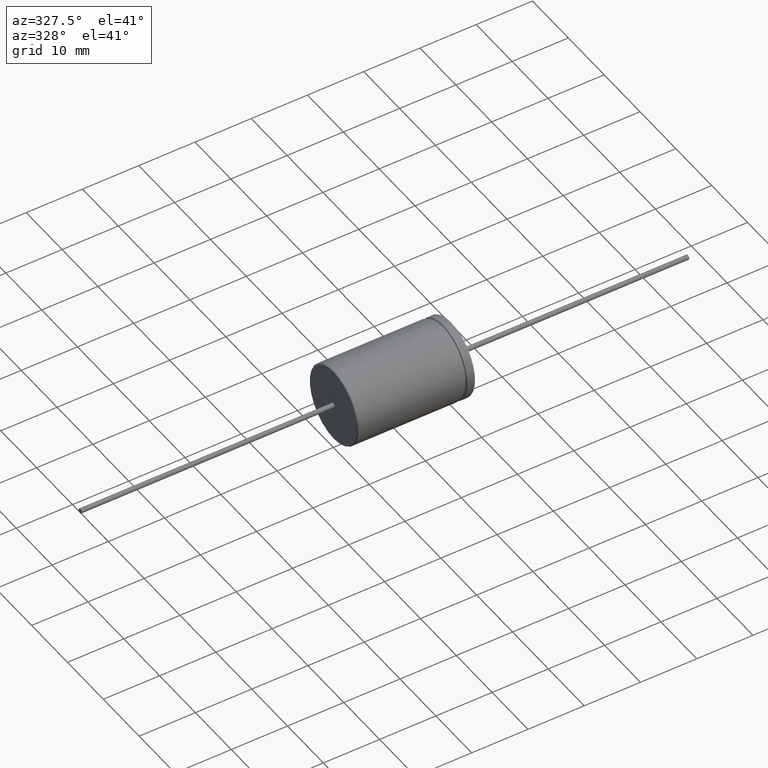
[diagram: clean part render]
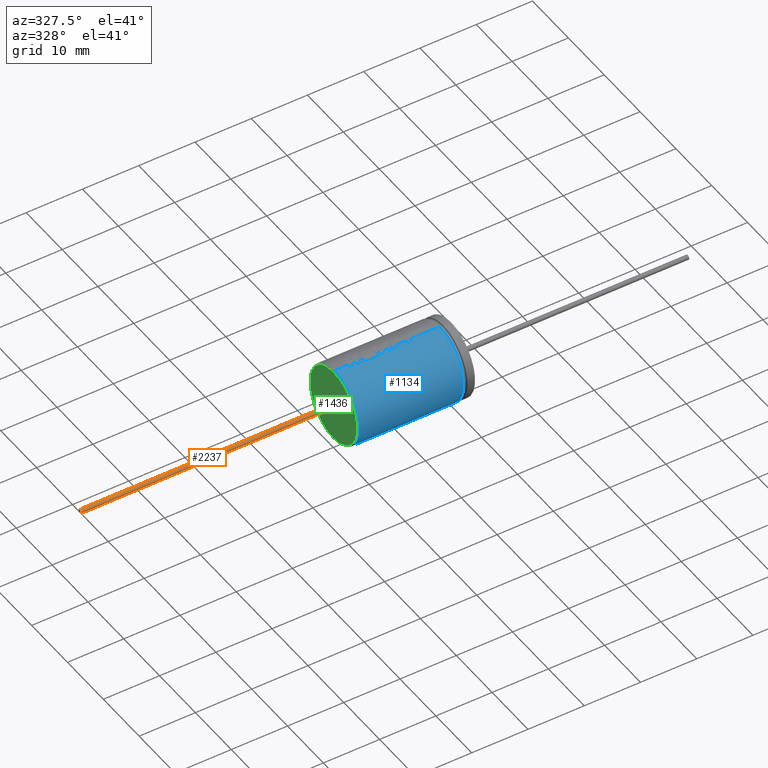
[diagram: same view with three faces highlighted in distinct colors, each labeled with its STEP entity id]
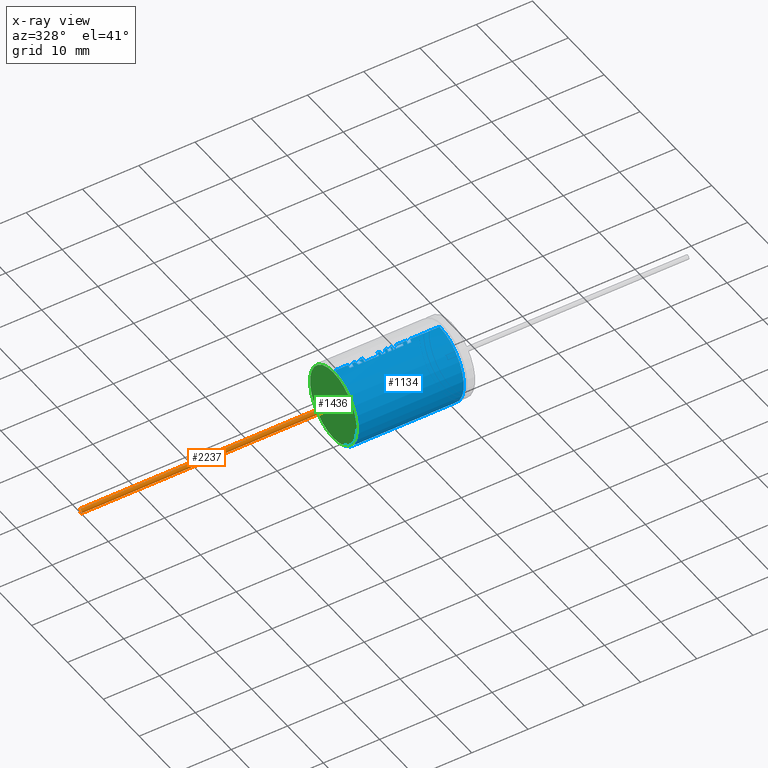
[diagram: x-ray of the same camera — body ghosted, the three highlighted faces saturated]
A machine part, auxiliary view with three faces highlighted in distinct colors.
The next image is the same camera in x-ray (body ghosted, the three faces saturated) — at least one of them is partly hidden behind the body in this view.
Their STEP definitions:

[orange] entity #2237 — the highlighted cylindrical surface (edge-blend (fillet) strip) has radius 0.415 mm, axis along (1, -0, -0).
#11 = EDGE_CURVE ( 'NONE', #3561, #2084, #1582, .T. ) ;
#167 = EDGE_CURVE ( 'NONE', #859, #1754, #1039, .T. ) ;
#261 = FACE_OUTER_BOUND ( 'NONE', #4697, .T. ) ;
#394 = VECTOR ( 'NONE', #4275, 1000.000000000000000 ) ;
#435 = CARTESIAN_POINT ( 'NONE',  ( -45.00000000000000000, 5.082284216461515600E-017, 0.4150000000000000400 ) ) ;
#603 = CARTESIAN_POINT ( 'NONE',  ( 0.0000000000000000000, 0.0000000000000000000, 0.0000000000000000000 ) ) ;
#850 = CARTESIAN_POINT ( 'NONE',  ( 0.0000000000000000000, 0.0000000000000000000, -0.4150000000000000400 ) ) ;
#859 = VERTEX_POINT ( 'NONE', #850 ) ;
#1039 = CIRCLE ( 'NONE', #4531, 0.4150000000000000400 ) ;
#1076 = CARTESIAN_POINT ( 'NONE',  ( -45.00000000000000000, 0.0000000000000000000, 0.0000000000000000000 ) ) ;
#1093 = CARTESIAN_POINT ( 'NONE',  ( -45.00000000000000000, 0.0000000000000000000, -0.4150000000000000400 ) ) ;
#1381 = ORIENTED_EDGE ( 'NONE', *, *, #11, .F. ) ;
#1582 = CIRCLE ( 'NONE', #2242, 0.4150000000000000400 ) ;
#1754 = VERTEX_POINT ( 'NONE', #2627 ) ;
#1758 = AXIS2_PLACEMENT_3D ( 'NONE', #3017, #3082, #2358 ) ;
#1988 = DIRECTION ( 'NONE',  ( 1.000000000000000000, -0.0000000000000000000, -0.0000000000000000000 ) ) ;
#2084 = VERTEX_POINT ( 'NONE', #435 ) ;
#2237 = ADVANCED_FACE ( 'NONE', ( #261 ), #3027, .T. ) ;
#2242 = AXIS2_PLACEMENT_3D ( 'NONE', #1076, #3641, #4017 ) ;
#2358 = DIRECTION ( 'NONE',  ( 0.0000000000000000000, 0.0000000000000000000, -1.000000000000000000 ) ) ;
#2627 = CARTESIAN_POINT ( 'NONE',  ( 0.0000000000000000000, 5.082284216461515600E-017, 0.4150000000000000400 ) ) ;
#2647 = ORIENTED_EDGE ( 'NONE', *, *, #2972, .T. ) ;
#2776 = DIRECTION ( 'NONE',  ( -1.000000000000000000, -0.0000000000000000000, -0.0000000000000000000 ) ) ;
#2814 = LINE ( 'NONE', #3393, #2920 ) ;
#2920 = VECTOR ( 'NONE', #1988, 1000.000000000000000 ) ;
#2972 = EDGE_CURVE ( 'NONE', #3561, #859, #2814, .T. ) ;
#3017 = CARTESIAN_POINT ( 'NONE',  ( -45.00000000000000000, 0.0000000000000000000, 0.0000000000000000000 ) ) ;
#3027 = CYLINDRICAL_SURFACE ( 'NONE', #1758, 0.4150000000000000400 ) ;
#3042 = EDGE_CURVE ( 'NONE', #2084, #1754, #3190, .T. ) ;
#3082 = DIRECTION ( 'NONE',  ( 1.000000000000000000, -0.0000000000000000000, -0.0000000000000000000 ) ) ;
#3190 = LINE ( 'NONE', #4290, #394 ) ;
#3393 = CARTESIAN_POINT ( 'NONE',  ( -45.00000000000000000, 0.0000000000000000000, -0.4150000000000000400 ) ) ;
#3561 = VERTEX_POINT ( 'NONE', #1093 ) ;
#3641 = DIRECTION ( 'NONE',  ( -1.000000000000000000, 0.0000000000000000000, 0.0000000000000000000 ) ) ;
#3716 = ORIENTED_EDGE ( 'NONE', *, *, #167, .T. ) ;
#3912 = DIRECTION ( 'NONE',  ( 0.0000000000000000000, 0.0000000000000000000, -1.000000000000000000 ) ) ;
#4017 = DIRECTION ( 'NONE',  ( 0.0000000000000000000, 0.0000000000000000000, 1.000000000000000000 ) ) ;
#4275 = DIRECTION ( 'NONE',  ( 1.000000000000000000, -0.0000000000000000000, -0.0000000000000000000 ) ) ;
#4290 = CARTESIAN_POINT ( 'NONE',  ( -45.00000000000000000, 5.082284216461515600E-017, 0.4150000000000000400 ) ) ;
#4531 = AXIS2_PLACEMENT_3D ( 'NONE', #603, #2776, #3912 ) ;
#4697 = EDGE_LOOP ( 'NONE', ( #4755, #1381, #2647, #3716 ) ) ;
#4755 = ORIENTED_EDGE ( 'NONE', *, *, #3042, .F. ) ;

[blue] entity #1134 — the highlighted cylindrical surface (partial cylindrical patch) has radius 6.75 mm, axis along (-1, -0, -0).
#17 = CARTESIAN_POINT ( 'NONE',  ( 3.857429012925699800, -0.2303407911832766100, 6.749974318427220500 ) ) ;
#20 = LINE ( 'NONE', #3083, #1112 ) ;
#49 = VERTEX_POINT ( 'NONE', #3867 ) ;
#71 = CARTESIAN_POINT ( 'NONE',  ( 0.2500000000000002200, 8.266365894244632400E-016, -6.750000000000000000 ) ) ;
#121 = ORIENTED_EDGE ( 'NONE', *, *, #2374, .F. ) ;
#131 = ORIENTED_EDGE ( 'NONE', *, *, #3179, .T. ) ;
#144 = CARTESIAN_POINT ( 'NONE',  ( 9.517690659498075700, -2.503383600265947000E-007, 6.749938489587909100 ) ) ;
#162 = ORIENTED_EDGE ( 'NONE', *, *, #3829, .F. ) ;
#177 = CARTESIAN_POINT ( 'NONE',  ( 10.00037511690322100, -0.4606233264338413500, 6.738205661582910000 ) ) ;
#192 = EDGE_CURVE ( 'NONE', #3750, #4176, #812, .T. ) ;
#217 = VERTEX_POINT ( 'NONE', #642 ) ;
#225 = CARTESIAN_POINT ( 'NONE',  ( 7.721455058457464400, -0.4606431409906652800, 6.738203625940745000 ) ) ;
#227 = B_SPLINE_CURVE_WITH_KNOTS ( 'NONE', 3,
 ( #364, #317, #691, #4387 ),
 .UNSPECIFIED., .F., .F.,
 ( 4, 4 ),
 ( 0.6460871771298075700, 1.000000000000000000 ),
 .UNSPECIFIED. ) ;
#243 = ORIENTED_EDGE ( 'NONE', *, *, #2757, .F. ) ;
#309 = EDGE_CURVE ( 'NONE', #1946, #328, #2267, .T. ) ;
#317 = CARTESIAN_POINT ( 'NONE',  ( 12.89091360785602800, -0.2303217793808541000, 6.749935600032433300 ) ) ;
#328 = VERTEX_POINT ( 'NONE', #2505 ) ;
#346 = CARTESIAN_POINT ( 'NONE',  ( 3.138411801012513700, -0.6898282814599188100, 6.714658363766399200 ) ) ;
#358 = CARTESIAN_POINT ( 'NONE',  ( 21.00000000000000000, 0.0000000000000000000, 6.750000000000000000 ) ) ;
#362 = CARTESIAN_POINT ( 'NONE',  ( 4.587624388632676200, -0.2303408246247303500, 6.749974307742441200 ) ) ;
#364 = CARTESIAN_POINT ( 'NONE',  ( 12.95713361661172100, -1.345625313786655300E-007, 6.749953841655469400 ) ) ;
#365 = B_SPLINE_CURVE_WITH_KNOTS ( 'NONE', 3,
 ( #2921, #700, #4769, #2583 ),
 .UNSPECIFIED., .F., .F.,
 ( 4, 4 ),
 ( 0.0000000000000000000, 1.000000000000000000 ),
 .UNSPECIFIED. ) ;
#384 = CARTESIAN_POINT ( 'NONE',  ( 4.492146638237773700, 7.379054222907481000E-009, 6.749988029445163700 ) ) ;
#386 = VERTEX_POINT ( 'NONE', #1453 ) ;
#387 = DIRECTION ( 'NONE',  ( -1.000000000000000000, -0.0000000000000000000, -0.0000000000000000000 ) ) ;
#404 = CARTESIAN_POINT ( 'NONE',  ( 21.00000000000000000, 8.266365894244632400E-016, -6.750000000000000000 ) ) ;
#438 = CARTESIAN_POINT ( 'NONE',  ( 21.00000000000000000, 0.0000000000000000000, 6.750000000000000000 ) ) ;
#460 = LINE ( 'NONE', #2610, #860 ) ;
#463 = DIRECTION ( 'NONE',  ( -1.000000000000000000, -0.0000000000000000000, -0.0000000000000000000 ) ) ;
#472 = VERTEX_POINT ( 'NONE', #2945 ) ;
#480 = EDGE_CURVE ( 'NONE', #4265, #3480, #2856, .T. ) ;
#488 = CARTESIAN_POINT ( 'NONE',  ( 9.162957368574032200, -6.807773354851245200E-007, 6.749937321502800500 ) ) ;
#530 = DIRECTION ( 'NONE',  ( 1.000000000000000000, 0.0000000000000000000, 0.0000000000000000000 ) ) ;
#542 = CARTESIAN_POINT ( 'NONE',  ( 8.919777617595952900, -0.4606488899918031500, 6.738203035318950800 ) ) ;
#569 = LINE ( 'NONE', #404, #4356 ) ;
#572 = ORIENTED_EDGE ( 'NONE', *, *, #3618, .F. ) ;
#585 = FACE_OUTER_BOUND ( 'NONE', #2542, .T. ) ;
#587 = EDGE_CURVE ( 'NONE', #1128, #1946, #4298, .T. ) ;
#616 = ORIENTED_EDGE ( 'NONE', *, *, #3660, .F. ) ;
#627 = B_SPLINE_CURVE_WITH_KNOTS ( 'NONE', 3,
 ( #4088, #4436, #362, #4401 ),
 .UNSPECIFIED., .F., .F.,
 ( 4, 4 ),
 ( 0.0000000000000000000, 0.5259698779780682700 ),
 .UNSPECIFIED. ) ;
#642 = CARTESIAN_POINT ( 'NONE',  ( 8.798156111622816400, -0.6898282814598949400, 6.714658363766401900 ) ) ;
#647 = EDGE_CURVE ( 'NONE', #1001, #472, #2250, .T. ) ;
#691 = CARTESIAN_POINT ( 'NONE',  ( 12.82468952648116900, -0.4606554741089987100, 6.738202358901775200 ) ) ;
#700 = CARTESIAN_POINT ( 'NONE',  ( 12.09703751897201800, -0.5371526552038988800, 6.730343445445211800 ) ) ;
#727 = CARTESIAN_POINT ( 'NONE',  ( 11.06706261394878500, -0.1537314705490418800, 6.748686909597829200 ) ) ;
#744 = ORIENTED_EDGE ( 'NONE', *, *, #1372, .F. ) ;
#752 = DIRECTION ( 'NONE',  ( 1.000000000000000000, 2.740325383713371200E-015, 3.985927830855812400E-016 ) ) ;
#762 = EDGE_CURVE ( 'NONE', #3428, #4255, #1155, .T. ) ;
#780 = DIRECTION ( 'NONE',  ( 1.000000000000000000, 0.0000000000000000000, 0.0000000000000000000 ) ) ;
#787 = VERTEX_POINT ( 'NONE', #3048 ) ;
#801 = LINE ( 'NONE', #2768, #4530 ) ;
#812 = LINE ( 'NONE', #1379, #3676 ) ;
#853 = B_SPLINE_CURVE_WITH_KNOTS ( 'NONE', 3,
 ( #3105, #225, #3863, #3909 ),
 .UNSPECIFIED., .F., .F.,
 ( 4, 4 ),
 ( 0.0000000000000000000, 0.3207682397884314400 ),
 .UNSPECIFIED. ) ;
#860 = VECTOR ( 'NONE', #1522, 1000.000000000000000 ) ;
#885 = DIRECTION ( 'NONE',  ( 1.000000000000000000, 1.384519675033740100E-014, 2.013846800049076600E-015 ) ) ;
#887 = CARTESIAN_POINT ( 'NONE',  ( 9.041372866360600100, -0.2303164106503936800, 6.749919154558080300 ) ) ;
#893 = DIRECTION ( 'NONE',  ( 1.000000000000000000, 0.0000000000000000000, 0.0000000000000000000 ) ) ;
#895 = CARTESIAN_POINT ( 'NONE',  ( 21.00000000000000000, 0.0000000000000000000, 6.750000000000000000 ) ) ;
#924 = CARTESIAN_POINT ( 'NONE',  ( 12.18413864561812500, -0.2305525350299264500, 6.746061482716509500 ) ) ;
#926 = VERTEX_POINT ( 'NONE', #3506 ) ;
#933 = CARTESIAN_POINT ( 'NONE',  ( 11.11095042226335700, -3.105022553634949300E-010, 6.749999510371600800 ) ) ;
#953 = VERTEX_POINT ( 'NONE', #4235 ) ;
#1001 = VERTEX_POINT ( 'NONE', #1207 ) ;
#1007 = VECTOR ( 'NONE', #4376, 1000.000000000000000 ) ;
#1012 = VECTOR ( 'NONE', #2931, 1000.000000000000000 ) ;
#1023 = CARTESIAN_POINT ( 'NONE',  ( 10.35786020738762600, -0.2302956592420664900, 6.749901821609698900 ) ) ;
#1050 = CARTESIAN_POINT ( 'NONE',  ( 4.042349904458672100, -0.6898282814599112600, 6.714658363766399200 ) ) ;
#1056 = CARTESIAN_POINT ( 'NONE',  ( 13.58015562502449700, -0.2303217783961534800, 6.749935600324253200 ) ) ;
#1058 = VERTEX_POINT ( 'NONE', #4024 ) ;
#1063 = EDGE_CURVE ( 'NONE', #953, #3093, #1446, .T. ) ;
#1082 = CYLINDRICAL_SURFACE ( 'NONE', #2962, 6.750000000000000000 ) ;
#1096 = B_SPLINE_CURVE_WITH_KNOTS ( 'NONE', 3,
 ( #3527, #4211, #4339, #4403 ),
 .UNSPECIFIED., .F., .F.,
 ( 4, 4 ),
 ( 0.7144433375178228500, 1.000000000000000000 ),
 .UNSPECIFIED. ) ;
#1108 = VERTEX_POINT ( 'NONE', #1966 ) ;
#1112 = VECTOR ( 'NONE', #387, 1000.000000000000000 ) ;
#1128 = VERTEX_POINT ( 'NONE', #3008 ) ;
#1134 = ADVANCED_FACE ( 'NONE', ( #585 ), #1082, .T. ) ;
#1154 = VECTOR ( 'NONE', #3198, 1000.000000000000000 ) ;
#1155 = CIRCLE ( 'NONE', #3977, 6.750000000000000000 ) ;
#1173 = VERTEX_POINT ( 'NONE', #1622 ) ;
#1182 = EDGE_CURVE ( 'NONE', #4286, #787, #801, .T. ) ;
#1207 = CARTESIAN_POINT ( 'NONE',  ( 3.138411801012513700, -0.6898282814599188100, 6.714658363766399200 ) ) ;
#1227 = CARTESIAN_POINT ( 'NONE',  ( 9.385408458746665500, -0.4606424448803158000, 6.738203697455420900 ) ) ;
#1253 = LINE ( 'NONE', #1586, #2467 ) ;
#1323 = ORIENTED_EDGE ( 'NONE', *, *, #2833, .T. ) ;
#1348 = EDGE_CURVE ( 'NONE', #4525, #1611, #4241, .T. ) ;
#1367 = ORIENTED_EDGE ( 'NONE', *, *, #4557, .T. ) ;
#1369 = VECTOR ( 'NONE', #780, 1000.000000000000000 ) ;
#1371 = VERTEX_POINT ( 'NONE', #2451 ) ;
#1372 = EDGE_CURVE ( 'NONE', #3358, #953, #2990, .T. ) ;
#1379 = CARTESIAN_POINT ( 'NONE',  ( 9.319247418248767900, -0.6898282814598949400, 6.714658363766401900 ) ) ;
#1387 = CARTESIAN_POINT ( 'NONE',  ( 10.42410111669825800, -4.546704919334922100E-007, 6.749917920589117800 ) ) ;
#1414 = EDGE_CURVE ( 'NONE', #3181, #926, #3240, .T. ) ;
#1418 = VECTOR ( 'NONE', #3811, 1000.000000000000000 ) ;
#1422 = CARTESIAN_POINT ( 'NONE',  ( 9.162957368574032200, -6.807773354851245200E-007, 6.749937321502800500 ) ) ;
#1443 = ORIENTED_EDGE ( 'NONE', *, *, #2605, .F. ) ;
#1446 = B_SPLINE_CURVE_WITH_KNOTS ( 'NONE', 3,
 ( #2207, #727, #3666, #3299 ),
 .UNSPECIFIED., .F., .F.,
 ( 4, 4 ),
 ( 0.0000000000000000000, 0.3834972915943034000 ),
 .UNSPECIFIED. ) ;
#1453 = CARTESIAN_POINT ( 'NONE',  ( 12.95713361661172100, -1.345625313786655300E-007, 6.749953841655469400 ) ) ;
#1478 = CARTESIAN_POINT ( 'NONE',  ( 4.042349904458672100, -0.6898282814599112600, 6.714658363766399200 ) ) ;
#1501 = CARTESIAN_POINT ( 'NONE',  ( 10.13280915743032500, -4.543329897994637400E-007, 6.749917921406754400 ) ) ;
#1516 = CARTESIAN_POINT ( 'NONE',  ( 7.853719984873329500, -2.435593604454178300E-007, 6.749939279872739600 ) ) ;
#1522 = DIRECTION ( 'NONE',  ( -1.000000000000000000, -0.0000000000000000000, -0.0000000000000000000 ) ) ;
#1527 = CARTESIAN_POINT ( 'NONE',  ( 5.181127944298790300, -0.2302956623683264400, 6.749901820630340900 ) ) ;
#1535 = CARTESIAN_POINT ( 'NONE',  ( 21.00000000000000000, 0.0000000000000000000, 6.750000000000000000 ) ) ;
#1537 = CARTESIAN_POINT ( 'NONE',  ( 13.44773319490492400, -0.6898282814598830600, 6.714658363766402800 ) ) ;
#1583 = CARTESIAN_POINT ( 'NONE',  ( 21.00000000000000000, 0.0000000000000000000, 0.0000000000000000000 ) ) ;
#1586 = CARTESIAN_POINT ( 'NONE',  ( 2.450360269558710800, -0.6898282814599188100, 6.714658363766399200 ) ) ;
#1611 = VERTEX_POINT ( 'NONE', #4371 ) ;
#1622 = CARTESIAN_POINT ( 'NONE',  ( 5.247397564089324900, -4.550000637449569600E-007, 6.749917919790694200 ) ) ;
#1624 = ORIENTED_EDGE ( 'NONE', *, *, #192, .F. ) ;
#1625 = CARTESIAN_POINT ( 'NONE',  ( 9.319247418248767900, -0.6898282814598949400, 6.714658363766401900 ) ) ;
#1681 = CARTESIAN_POINT ( 'NONE',  ( 8.153086186862870100, -0.6898282814598949400, 6.714658363766401900 ) ) ;
#1733 = EDGE_CURVE ( 'NONE', #4525, #4255, #569, .T. ) ;
#1743 = B_SPLINE_CURVE_WITH_KNOTS ( 'NONE', 3,
 ( #2354, #542, #887, #488 ),
 .UNSPECIFIED., .F., .F.,
 ( 4, 4 ),
 ( 0.0000000000000000000, 0.3192328630253549200 ),
 .UNSPECIFIED. ) ;
#1784 = VERTEX_POINT ( 'NONE', #384 ) ;
#1796 = CARTESIAN_POINT ( 'NONE',  ( 21.00000000000000000, 0.0000000000000000000, 6.750000000000000000 ) ) ;
#1808 = VERTEX_POINT ( 'NONE', #2740 ) ;
#1818 = EDGE_CURVE ( 'NONE', #2681, #1371, #1096, .T. ) ;
#1886 = LINE ( 'NONE', #1796, #1007 ) ;
#1892 = B_SPLINE_CURVE_WITH_KNOTS ( 'NONE', 3,
 ( #144, #4568, #1227, #1625 ),
 .UNSPECIFIED., .F., .F.,
 ( 4, 4 ),
 ( 0.6807695813246207300, 1.000000000000000000 ),
 .UNSPECIFIED. ) ;
#1907 = CARTESIAN_POINT ( 'NONE',  ( 5.114847272340662200, -0.4606233339881782300, 6.738205660806817000 ) ) ;
#1910 = ORIENTED_EDGE ( 'NONE', *, *, #2797, .F. ) ;
#1946 = VERTEX_POINT ( 'NONE', #1050 ) ;
#1966 = CARTESIAN_POINT ( 'NONE',  ( 5.048544165565351300, -0.6898282814599069300, 6.714658363766400100 ) ) ;
#1968 = DIRECTION ( 'NONE',  ( 1.000000000000000000, 0.0000000000000000000, 0.0000000000000000000 ) ) ;
#1993 = EDGE_CURVE ( 'NONE', #1128, #472, #2234, .T. ) ;
#2015 = ORIENTED_EDGE ( 'NONE', *, *, #480, .T. ) ;
#2025 = ORIENTED_EDGE ( 'NONE', *, *, #762, .T. ) ;
#2042 = VECTOR ( 'NONE', #3483, 1000.000000000000000 ) ;
#2120 = EDGE_CURVE ( 'NONE', #49, #2638, #2846, .T. ) ;
#2130 = VERTEX_POINT ( 'NONE', #1516 ) ;
#2141 = EDGE_CURVE ( 'NONE', #386, #3093, #3838, .T. ) ;
#2154 = EDGE_CURVE ( 'NONE', #1371, #1001, #1253, .T. ) ;
#2172 = CARTESIAN_POINT ( 'NONE',  ( 18.87500000000000000, 8.266365894244632400E-016, -6.750000000000000000 ) ) ;
#2173 = ORIENTED_EDGE ( 'NONE', *, *, #309, .F. ) ;
#2178 = CARTESIAN_POINT ( 'NONE',  ( 3.270456214232262400, -0.2303405248597401600, 6.749974403521164800 ) ) ;
#2205 = CARTESIAN_POINT ( 'NONE',  ( 3.949886823476836700, -0.4606809533221993800, 6.738199741302947700 ) ) ;
#2207 = CARTESIAN_POINT ( 'NONE',  ( 11.04511865939865300, -0.2305525350299264500, 6.746061482716509500 ) ) ;
#2232 = CARTESIAN_POINT ( 'NONE',  ( 13.64635653993422100, -1.344964071327617600E-007, 6.749953841861212400 ) ) ;
#2234 = LINE ( 'NONE', #358, #1012 ) ;
#2250 = B_SPLINE_CURVE_WITH_KNOTS ( 'NONE', 3,
 ( #346, #3983, #2178, #3260 ),
 .UNSPECIFIED., .F., .F.,
 ( 4, 4 ),
 ( 0.0000000000000000000, 0.5259699093465573000 ),
 .UNSPECIFIED. ) ;
#2267 = LINE ( 'NONE', #4340, #1154 ) ;
#2316 = VECTOR ( 'NONE', #4547, 1000.000000000000000 ) ;
#2336 = DIRECTION ( 'NONE',  ( -1.000000000000000000, -0.0000000000000000000, -0.0000000000000000000 ) ) ;
#2337 = DIRECTION ( 'NONE',  ( -1.000000000000000000, -0.0000000000000000000, -0.0000000000000000000 ) ) ;
#2353 = VECTOR ( 'NONE', #530, 1000.000000000000000 ) ;
#2354 = CARTESIAN_POINT ( 'NONE',  ( 8.798156111622816400, -0.6898282814598949400, 6.714658363766401900 ) ) ;
#2374 = EDGE_CURVE ( 'NONE', #4176, #3480, #4202, .T. ) ;
#2389 = CARTESIAN_POINT ( 'NONE',  ( 13.64635653993422100, -1.344964071327617600E-007, 6.749953841861212400 ) ) ;
#2411 = ORIENTED_EDGE ( 'NONE', *, *, #1414, .F. ) ;
#2414 = LINE ( 'NONE', #4174, #1418 ) ;
#2434 = ORIENTED_EDGE ( 'NONE', *, *, #2120, .F. ) ;
#2451 = CARTESIAN_POINT ( 'NONE',  ( 2.450360269558717900, -0.6898282814599187000, 6.714658363766399200 ) ) ;
#2467 = VECTOR ( 'NONE', #1968, 1000.000000000000000 ) ;
#2473 = EDGE_CURVE ( 'NONE', #1808, #3031, #2414, .T. ) ;
#2505 = CARTESIAN_POINT ( 'NONE',  ( 4.778584689303873000, -0.6898282814599069300, 6.714658363766400100 ) ) ;
#2542 = EDGE_LOOP ( 'NONE', ( #4523, #3086, #4223, #616, #2434, #2714, #2722, #4747, #744, #572, #2734, #3418, #2015, #121, #1624, #162, #1323, #4638, #2759, #2411, #1367, #4517, #3659, #1910, #1443, #3138, #243, #2173, #4038, #3285, #4238, #3816, #4396, #131, #2025 ) ) ;
#2574 = VECTOR ( 'NONE', #2958, 1000.000000000000000 ) ;
#2583 = CARTESIAN_POINT ( 'NONE',  ( 12.18413864561812500, -0.2305525350299264500, 6.746061482716509500 ) ) ;
#2605 = EDGE_CURVE ( 'NONE', #1173, #1108, #2883, .T. ) ;
#2610 = CARTESIAN_POINT ( 'NONE',  ( 21.00000000000000000, 0.0000000000000000000, 6.750000000000000000 ) ) ;
#2618 = CARTESIAN_POINT ( 'NONE',  ( 10.42410111669825800, -4.546704919334922100E-007, 6.749917920589117800 ) ) ;
#2638 = VERTEX_POINT ( 'NONE', #1537 ) ;
#2648 = AXIS2_PLACEMENT_3D ( 'NONE', #3108, #2747, #3853 ) ;
#2672 = CARTESIAN_POINT ( 'NONE',  ( 8.191820828479286800, -3.123046958003914600E-008, 6.749939852132141200 ) ) ;
#2681 = VERTEX_POINT ( 'NONE', #3095 ) ;
#2699 = CARTESIAN_POINT ( 'NONE',  ( 5.048544165565351300, -0.6898282814599069300, 6.714658363766400100 ) ) ;
#2714 = ORIENTED_EDGE ( 'NONE', *, *, #3624, .F. ) ;
#2722 = ORIENTED_EDGE ( 'NONE', *, *, #2141, .T. ) ;
#2724 = DIRECTION ( 'NONE',  ( 0.0000000000000000000, 0.0000000000000000000, 1.000000000000000000 ) ) ;
#2734 = ORIENTED_EDGE ( 'NONE', *, *, #2473, .F. ) ;
#2740 = CARTESIAN_POINT ( 'NONE',  ( 10.22533386639194400, -0.6898282814598889500, 6.714658363766402800 ) ) ;
#2747 = DIRECTION ( 'NONE',  ( -1.000000000000000000, -0.0000000000000000000, -0.0000000000000000000 ) ) ;
#2757 = EDGE_CURVE ( 'NONE', #328, #1784, #627, .T. ) ;
#2759 = ORIENTED_EDGE ( 'NONE', *, *, #3888, .F. ) ;
#2768 = CARTESIAN_POINT ( 'NONE',  ( 7.224603980983970600, -0.6898282814599009400, 6.714658363766401000 ) ) ;
#2797 = EDGE_CURVE ( 'NONE', #1108, #4286, #4749, .T. ) ;
#2833 = EDGE_CURVE ( 'NONE', #1058, #3546, #460, .T. ) ;
#2834 = CARTESIAN_POINT ( 'NONE',  ( 10.29160825006963800, -0.4606233302559087900, 6.738205661190250800 ) ) ;
#2846 = LINE ( 'NONE', #3011, #1369 ) ;
#2856 = LINE ( 'NONE', #438, #3718 ) ;
#2883 = B_SPLINE_CURVE_WITH_KNOTS ( 'NONE', 3,
 ( #3021, #1527, #1907, #2699 ),
 .UNSPECIFIED., .F., .F.,
 ( 4, 4 ),
 ( 0.7144433323837604500, 1.000000000000000000 ),
 .UNSPECIFIED. ) ;
#2886 = LINE ( 'NONE', #895, #3170 ) ;
#2921 = CARTESIAN_POINT ( 'NONE',  ( 12.05348691570174100, -0.6898282814598830600, 6.714658363766402800 ) ) ;
#2931 = DIRECTION ( 'NONE',  ( -1.000000000000000000, -0.0000000000000000000, -0.0000000000000000000 ) ) ;
#2945 = CARTESIAN_POINT ( 'NONE',  ( 3.336476630737848800, 3.898509415300750000E-009, 6.749988074184023500 ) ) ;
#2958 = DIRECTION ( 'NONE',  ( -1.000000000000000000, -0.0000000000000000000, -0.0000000000000000000 ) ) ;
#2962 = AXIS2_PLACEMENT_3D ( 'NONE', #1583, #2336, #2724 ) ;
#2990 = LINE ( 'NONE', #924, #2042 ) ;
#3008 = CARTESIAN_POINT ( 'NONE',  ( 3.764970911602402400, 6.991306685717561800E-009, 6.749988034436075400 ) ) ;
#3011 = CARTESIAN_POINT ( 'NONE',  ( 12.75845298491764800, -0.6898282814598830600, 6.714658363766402800 ) ) ;
#3021 = CARTESIAN_POINT ( 'NONE',  ( 5.247397564089324900, -4.550000637449569600E-007, 6.749917919790694200 ) ) ;
#3026 = CARTESIAN_POINT ( 'NONE',  ( 9.934130157072905500, -0.6898282814598889500, 6.714658363766402800 ) ) ;
#3031 = VERTEX_POINT ( 'NONE', #3755 ) ;
#3048 = CARTESIAN_POINT ( 'NONE',  ( 7.655302948734284700, -0.6898282814598949400, 6.714658363766401900 ) ) ;
#3073 = CARTESIAN_POINT ( 'NONE',  ( 7.224603980983970600, -0.6898282814599009400, 6.714658363766401000 ) ) ;
#3083 = CARTESIAN_POINT ( 'NONE',  ( 21.00000000000000000, 0.0000000000000000000, 6.750000000000000000 ) ) ;
#3086 = ORIENTED_EDGE ( 'NONE', *, *, #1348, .T. ) ;
#3093 = VERTEX_POINT ( 'NONE', #933 ) ;
#3094 = CARTESIAN_POINT ( 'NONE',  ( 8.153086186862870100, -0.6898282814598949400, 6.714658363766401900 ) ) ;
#3095 = CARTESIAN_POINT ( 'NONE',  ( 2.648953121698235200, -4.540036335704745300E-007, 6.749917922204657500 ) ) ;
#3101 = DIRECTION ( 'NONE',  ( 0.0000000000000000000, 0.0000000000000000000, -1.000000000000000000 ) ) ;
#3105 = CARTESIAN_POINT ( 'NONE',  ( 7.655302948734284700, -0.6898282814598949400, 6.714658363766401900 ) ) ;
#3108 = CARTESIAN_POINT ( 'NONE',  ( 18.87500000000000000, 0.0000000000000000000, 0.0000000000000000000 ) ) ;
#3133 = CARTESIAN_POINT ( 'NONE',  ( 9.934130157072905500, -0.6898282814598889500, 6.714658363766402800 ) ) ;
#3138 = ORIENTED_EDGE ( 'NONE', *, *, #3918, .T. ) ;
#3170 = VECTOR ( 'NONE', #2337, 1000.000000000000000 ) ;
#3179 = EDGE_CURVE ( 'NONE', #2681, #3428, #3902, .T. ) ;
#3181 = VERTEX_POINT ( 'NONE', #3708 ) ;
#3198 = DIRECTION ( 'NONE',  ( 1.000000000000000000, 0.0000000000000000000, 0.0000000000000000000 ) ) ;
#3240 = B_SPLINE_CURVE_WITH_KNOTS ( 'NONE', 3,
 ( #2672, #4249, #3891, #1681 ),
 .UNSPECIFIED., .F., .F.,
 ( 4, 4 ),
 ( 0.6792329532691947500, 1.000000000000000000 ),
 .UNSPECIFIED. ) ;
#3260 = CARTESIAN_POINT ( 'NONE',  ( 3.336476630737848800, 3.898509415300750000E-009, 6.749988074184023500 ) ) ;
#3264 = CARTESIAN_POINT ( 'NONE',  ( 0.2500000000000002200, 0.0000000000000000000, 6.750000000000000000 ) ) ;
#3285 = ORIENTED_EDGE ( 'NONE', *, *, #1993, .T. ) ;
#3289 = CARTESIAN_POINT ( 'NONE',  ( 13.51395063850841900, -0.4606554727682739500, 6.738202359039512100 ) ) ;
#3292 = EDGE_CURVE ( 'NONE', #787, #2130, #853, .T. ) ;
#3299 = CARTESIAN_POINT ( 'NONE',  ( 11.11095042226335700, -3.105022553634949300E-010, 6.749999510371600800 ) ) ;
#3358 = VERTEX_POINT ( 'NONE', #3563 ) ;
#3418 = ORIENTED_EDGE ( 'NONE', *, *, #4033, .F. ) ;
#3428 = VERTEX_POINT ( 'NONE', #3264 ) ;
#3480 = VERTEX_POINT ( 'NONE', #1501 ) ;
#3483 = DIRECTION ( 'NONE',  ( -1.000000000000000000, 0.0000000000000000000, 0.0000000000000000000 ) ) ;
#3506 = CARTESIAN_POINT ( 'NONE',  ( 8.153086186862870100, -0.6898282814598949400, 6.714658363766401900 ) ) ;
#3527 = CARTESIAN_POINT ( 'NONE',  ( 2.648953121698235200, -4.540036335704745300E-007, 6.749917922204657500 ) ) ;
#3546 = VERTEX_POINT ( 'NONE', #1422 ) ;
#3563 = CARTESIAN_POINT ( 'NONE',  ( 12.18413864561812500, -0.2305525350299264500, 6.746061482716509500 ) ) ;
#3616 = CARTESIAN_POINT ( 'NONE',  ( 13.44773319490492400, -0.6898282814598830600, 6.714658363766402800 ) ) ;
#3618 = EDGE_CURVE ( 'NONE', #3031, #3358, #365, .T. ) ;
#3624 = EDGE_CURVE ( 'NONE', #386, #49, #227, .T. ) ;
#3659 = ORIENTED_EDGE ( 'NONE', *, *, #1182, .F. ) ;
#3660 = EDGE_CURVE ( 'NONE', #2638, #3773, #4377, .T. ) ;
#3665 = CARTESIAN_POINT ( 'NONE',  ( 3.764970911602402400, 6.991306685717561800E-009, 6.749988034436075400 ) ) ;
#3666 = CARTESIAN_POINT ( 'NONE',  ( 11.08900652384687800, -0.07686571802992850400, 6.749999267551918300 ) ) ;
#3676 = VECTOR ( 'NONE', #4615, 1000.000000000000000 ) ;
#3701 = CARTESIAN_POINT ( 'NONE',  ( 5.048544165565351300, -0.6898282814599069300, 6.714658363766400100 ) ) ;
#3708 = CARTESIAN_POINT ( 'NONE',  ( 8.191820828479286800, -3.123046958003914600E-008, 6.749939852132141200 ) ) ;
#3718 = VECTOR ( 'NONE', #4491, 1000.000000000000000 ) ;
#3750 = VERTEX_POINT ( 'NONE', #4439 ) ;
#3755 = CARTESIAN_POINT ( 'NONE',  ( 12.05348691570174100, -0.6898282814598830600, 6.714658363766402800 ) ) ;
#3773 = VERTEX_POINT ( 'NONE', #2389 ) ;
#3790 = EDGE_CURVE ( 'NONE', #1611, #3773, #20, .T. ) ;
#3811 = DIRECTION ( 'NONE',  ( 1.000000000000000000, 3.261823155846607900E-015, 0.0000000000000000000 ) ) ;
#3816 = ORIENTED_EDGE ( 'NONE', *, *, #2154, .F. ) ;
#3829 = EDGE_CURVE ( 'NONE', #1058, #3750, #1892, .T. ) ;
#3838 = LINE ( 'NONE', #1535, #2574 ) ;
#3841 = CARTESIAN_POINT ( 'NONE',  ( 0.2500000000000002200, 0.0000000000000000000, 0.0000000000000000000 ) ) ;
#3852 = EDGE_CURVE ( 'NONE', #217, #3546, #1743, .T. ) ;
#3853 = DIRECTION ( 'NONE',  ( 0.0000000000000000000, 0.0000000000000000000, -1.000000000000000000 ) ) ;
#3862 = CARTESIAN_POINT ( 'NONE',  ( 10.13280915743032500, -4.543329897994637400E-007, 6.749917921406754400 ) ) ;
#3863 = CARTESIAN_POINT ( 'NONE',  ( 7.787590836557113100, -0.2303119062071158900, 6.749921439558562500 ) ) ;
#3867 = CARTESIAN_POINT ( 'NONE',  ( 12.75845298491764800, -0.6898282814598830600, 6.714658363766402800 ) ) ;
#3882 = B_SPLINE_CURVE_WITH_KNOTS ( 'NONE', 3,
 ( #1387, #1023, #2834, #4322 ),
 .UNSPECIFIED., .F., .F.,
 ( 4, 4 ),
 ( 0.7144433340818681100, 1.000000000000000000 ),
 .UNSPECIFIED. ) ;
#3888 = EDGE_CURVE ( 'NONE', #926, #217, #4279, .T. ) ;
#3891 = CARTESIAN_POINT ( 'NONE',  ( 8.166000466660650000, -0.4606399581143486000, 6.738203952932527100 ) ) ;
#3902 = LINE ( 'NONE', #4529, #2316 ) ;
#3909 = CARTESIAN_POINT ( 'NONE',  ( 7.853719984873329500, -2.435593604454178300E-007, 6.749939279872739600 ) ) ;
#3918 = EDGE_CURVE ( 'NONE', #1173, #1784, #2886, .T. ) ;
#3977 = AXIS2_PLACEMENT_3D ( 'NONE', #3841, #893, #3101 ) ;
#3983 = CARTESIAN_POINT ( 'NONE',  ( 3.204436019766583800, -0.4606803673401612100, 6.738199801503626000 ) ) ;
#4024 = CARTESIAN_POINT ( 'NONE',  ( 9.517690659498075700, -2.503383600265947000E-007, 6.749938489587909100 ) ) ;
#4033 = EDGE_CURVE ( 'NONE', #4265, #1808, #3882, .T. ) ;
#4038 = ORIENTED_EDGE ( 'NONE', *, *, #587, .F. ) ;
#4088 = CARTESIAN_POINT ( 'NONE',  ( 4.778584689303873000, -0.6898282814599069300, 6.714658363766400100 ) ) ;
#4174 = CARTESIAN_POINT ( 'NONE',  ( 10.22533386639194400, -0.6898282814598889500, 6.714658363766402800 ) ) ;
#4176 = VERTEX_POINT ( 'NONE', #3026 ) ;
#4202 = B_SPLINE_CURVE_WITH_KNOTS ( 'NONE', 3,
 ( #3133, #177, #4558, #3862 ),
 .UNSPECIFIED., .F., .F.,
 ( 4, 4 ),
 ( 0.0000000000000000000, 0.2855566641791651400 ),
 .UNSPECIFIED. ) ;
#4211 = CARTESIAN_POINT ( 'NONE',  ( 2.582770333785076500, -0.2302956529163696100, 6.749901823591345700 ) ) ;
#4223 = ORIENTED_EDGE ( 'NONE', *, *, #3790, .T. ) ;
#4235 = CARTESIAN_POINT ( 'NONE',  ( 11.04511865939865300, -0.2305525350299264500, 6.746061482716509500 ) ) ;
#4238 = ORIENTED_EDGE ( 'NONE', *, *, #647, .F. ) ;
#4241 = CIRCLE ( 'NONE', #2648, 6.750000000000000000 ) ;
#4249 = CARTESIAN_POINT ( 'NONE',  ( 8.178911339442064900, -0.2303094085183306800, 6.749922195416652400 ) ) ;
#4255 = VERTEX_POINT ( 'NONE', #71 ) ;
#4265 = VERTEX_POINT ( 'NONE', #2618 ) ;
#4279 = LINE ( 'NONE', #3094, #2353 ) ;
#4286 = VERTEX_POINT ( 'NONE', #3073 ) ;
#4298 = B_SPLINE_CURVE_WITH_KNOTS ( 'NONE', 3,
 ( #3665, #17, #2205, #1478 ),
 .UNSPECIFIED., .F., .F.,
 ( 4, 4 ),
 ( 0.4740301185217717400, 1.000000000000000000 ),
 .UNSPECIFIED. ) ;
#4322 = CARTESIAN_POINT ( 'NONE',  ( 10.22533386639194400, -0.6898282814598889500, 6.714658363766402800 ) ) ;
#4339 = CARTESIAN_POINT ( 'NONE',  ( 2.516576506288815900, -0.4606233227040258400, 6.738205661966091500 ) ) ;
#4340 = CARTESIAN_POINT ( 'NONE',  ( 4.042349904458668600, -0.6898282814599069300, 6.714658363766400100 ) ) ;
#4356 = VECTOR ( 'NONE', #463, 1000.000000000000000 ) ;
#4371 = CARTESIAN_POINT ( 'NONE',  ( 18.87500000000000000, 0.0000000000000000000, 6.750000000000000000 ) ) ;
#4376 = DIRECTION ( 'NONE',  ( -1.000000000000000000, -0.0000000000000000000, -0.0000000000000000000 ) ) ;
#4377 = B_SPLINE_CURVE_WITH_KNOTS ( 'NONE', 3,
 ( #3616, #3289, #1056, #2232 ),
 .UNSPECIFIED., .F., .F.,
 ( 4, 4 ),
 ( 0.0000000000000000000, 0.3539128224673851500 ),
 .UNSPECIFIED. ) ;
#4387 = CARTESIAN_POINT ( 'NONE',  ( 12.75845298491764800, -0.6898282814598830600, 6.714658363766402800 ) ) ;
#4396 = ORIENTED_EDGE ( 'NONE', *, *, #1818, .F. ) ;
#4401 = CARTESIAN_POINT ( 'NONE',  ( 4.492146638237773700, 7.379054222907481000E-009, 6.749988029445163700 ) ) ;
#4403 = CARTESIAN_POINT ( 'NONE',  ( 2.450360269558717900, -0.6898282814599187000, 6.714658363766399200 ) ) ;
#4436 = CARTESIAN_POINT ( 'NONE',  ( 4.683101841375673800, -0.4606810269008556100, 6.738199733743868200 ) ) ;
#4439 = CARTESIAN_POINT ( 'NONE',  ( 9.319247418248767900, -0.6898282814598949400, 6.714658363766401900 ) ) ;
#4475 = VECTOR ( 'NONE', #752, 1000.000000000000000 ) ;
#4491 = DIRECTION ( 'NONE',  ( -1.000000000000000000, -0.0000000000000000000, -0.0000000000000000000 ) ) ;
#4517 = ORIENTED_EDGE ( 'NONE', *, *, #3292, .F. ) ;
#4523 = ORIENTED_EDGE ( 'NONE', *, *, #1733, .F. ) ;
#4525 = VERTEX_POINT ( 'NONE', #2172 ) ;
#4529 = CARTESIAN_POINT ( 'NONE',  ( 21.00000000000000000, 0.0000000000000000000, 6.750000000000000000 ) ) ;
#4530 = VECTOR ( 'NONE', #885, 1000.000000000000000 ) ;
#4547 = DIRECTION ( 'NONE',  ( -1.000000000000000000, -0.0000000000000000000, -0.0000000000000000000 ) ) ;
#4557 = EDGE_CURVE ( 'NONE', #3181, #2130, #1886, .T. ) ;
#4558 = CARTESIAN_POINT ( 'NONE',  ( 10.06659765903919800, -0.2302956560405866900, 6.749901822612623700 ) ) ;
#4568 = CARTESIAN_POINT ( 'NONE',  ( 9.451552949179877300, -0.2303113424086548100, 6.749920692016940100 ) ) ;
#4615 = DIRECTION ( 'NONE',  ( 1.000000000000000000, 0.0000000000000000000, 0.0000000000000000000 ) ) ;
#4638 = ORIENTED_EDGE ( 'NONE', *, *, #3852, .F. ) ;
#4747 = ORIENTED_EDGE ( 'NONE', *, *, #1063, .F. ) ;
#4749 = LINE ( 'NONE', #3701, #4475 ) ;
#4769 = CARTESIAN_POINT ( 'NONE',  ( 12.14058804234785400, -0.3839421947619793800, 6.740819257309995600 ) ) ;

[green] entity #1436 — the highlighted planar face has unit normal (1, 0, 0).
#64 = CIRCLE ( 'NONE', #4683, 6.500000000000000000 ) ;
#154 = EDGE_CURVE ( 'NONE', #687, #4242, #64, .T. ) ;
#160 = ORIENTED_EDGE ( 'NONE', *, *, #154, .T. ) ;
#167 = EDGE_CURVE ( 'NONE', #859, #1754, #1039, .T. ) ;
#603 = CARTESIAN_POINT ( 'NONE',  ( 0.0000000000000000000, 0.0000000000000000000, 0.0000000000000000000 ) ) ;
#687 = VERTEX_POINT ( 'NONE', #1581 ) ;
#808 = ORIENTED_EDGE ( 'NONE', *, *, #167, .F. ) ;
#842 = AXIS2_PLACEMENT_3D ( 'NONE', #1606, #4197, #1283 ) ;
#850 = CARTESIAN_POINT ( 'NONE',  ( 0.0000000000000000000, 0.0000000000000000000, -0.4150000000000000400 ) ) ;
#859 = VERTEX_POINT ( 'NONE', #850 ) ;
#1039 = CIRCLE ( 'NONE', #4531, 0.4150000000000000400 ) ;
#1283 = DIRECTION ( 'NONE',  ( 0.0000000000000000000, 0.0000000000000000000, -1.000000000000000000 ) ) ;
#1358 = CIRCLE ( 'NONE', #842, 6.500000000000000000 ) ;
#1436 = ADVANCED_FACE ( 'NONE', ( #3439, #1626 ), #3501, .F. ) ;
#1472 = ORIENTED_EDGE ( 'NONE', *, *, #3885, .T. ) ;
#1551 = DIRECTION ( 'NONE',  ( 0.0000000000000000000, 0.0000000000000000000, -1.000000000000000000 ) ) ;
#1581 = CARTESIAN_POINT ( 'NONE',  ( 0.0000000000000000000, 0.0000000000000000000, -6.500000000000000000 ) ) ;
#1606 = CARTESIAN_POINT ( 'NONE',  ( 0.0000000000000000000, 0.0000000000000000000, 0.0000000000000000000 ) ) ;
#1626 = FACE_BOUND ( 'NONE', #4671, .T. ) ;
#1754 = VERTEX_POINT ( 'NONE', #2627 ) ;
#1956 = AXIS2_PLACEMENT_3D ( 'NONE', #3752, #2942, #1551 ) ;
#2097 = EDGE_CURVE ( 'NONE', #1754, #859, #3290, .T. ) ;
#2310 = DIRECTION ( 'NONE',  ( 1.000000000000000000, 0.0000000000000000000, 0.0000000000000000000 ) ) ;
#2409 = AXIS2_PLACEMENT_3D ( 'NONE', #3880, #2310, #3866 ) ;
#2436 = DIRECTION ( 'NONE',  ( -1.000000000000000000, -0.0000000000000000000, -0.0000000000000000000 ) ) ;
#2552 = ORIENTED_EDGE ( 'NONE', *, *, #2097, .F. ) ;
#2627 = CARTESIAN_POINT ( 'NONE',  ( 0.0000000000000000000, 5.082284216461515600E-017, 0.4150000000000000400 ) ) ;
#2776 = DIRECTION ( 'NONE',  ( -1.000000000000000000, -0.0000000000000000000, -0.0000000000000000000 ) ) ;
#2942 = DIRECTION ( 'NONE',  ( -1.000000000000000000, -0.0000000000000000000, -0.0000000000000000000 ) ) ;
#3168 = DIRECTION ( 'NONE',  ( 0.0000000000000000000, 0.0000000000000000000, -1.000000000000000000 ) ) ;
#3290 = CIRCLE ( 'NONE', #1956, 0.4150000000000000400 ) ;
#3396 = EDGE_LOOP ( 'NONE', ( #160, #1472 ) ) ;
#3439 = FACE_OUTER_BOUND ( 'NONE', #3396, .T. ) ;
#3501 = PLANE ( 'NONE',  #2409 ) ;
#3519 = CARTESIAN_POINT ( 'NONE',  ( 0.0000000000000000000, 0.0000000000000000000, 0.0000000000000000000 ) ) ;
#3714 = CARTESIAN_POINT ( 'NONE',  ( 0.0000000000000000000, 8.113285044351214400E-016, 6.500000000000000000 ) ) ;
#3752 = CARTESIAN_POINT ( 'NONE',  ( 0.0000000000000000000, 0.0000000000000000000, 0.0000000000000000000 ) ) ;
#3866 = DIRECTION ( 'NONE',  ( 0.0000000000000000000, 0.0000000000000000000, -1.000000000000000000 ) ) ;
#3880 = CARTESIAN_POINT ( 'NONE',  ( 0.0000000000000000000, 0.0000000000000000000, 0.0000000000000000000 ) ) ;
#3885 = EDGE_CURVE ( 'NONE', #4242, #687, #1358, .T. ) ;
#3912 = DIRECTION ( 'NONE',  ( 0.0000000000000000000, 0.0000000000000000000, -1.000000000000000000 ) ) ;
#4197 = DIRECTION ( 'NONE',  ( -1.000000000000000000, -0.0000000000000000000, -0.0000000000000000000 ) ) ;
#4242 = VERTEX_POINT ( 'NONE', #3714 ) ;
#4531 = AXIS2_PLACEMENT_3D ( 'NONE', #603, #2776, #3912 ) ;
#4671 = EDGE_LOOP ( 'NONE', ( #808, #2552 ) ) ;
#4683 = AXIS2_PLACEMENT_3D ( 'NONE', #3519, #2436, #3168 ) ;